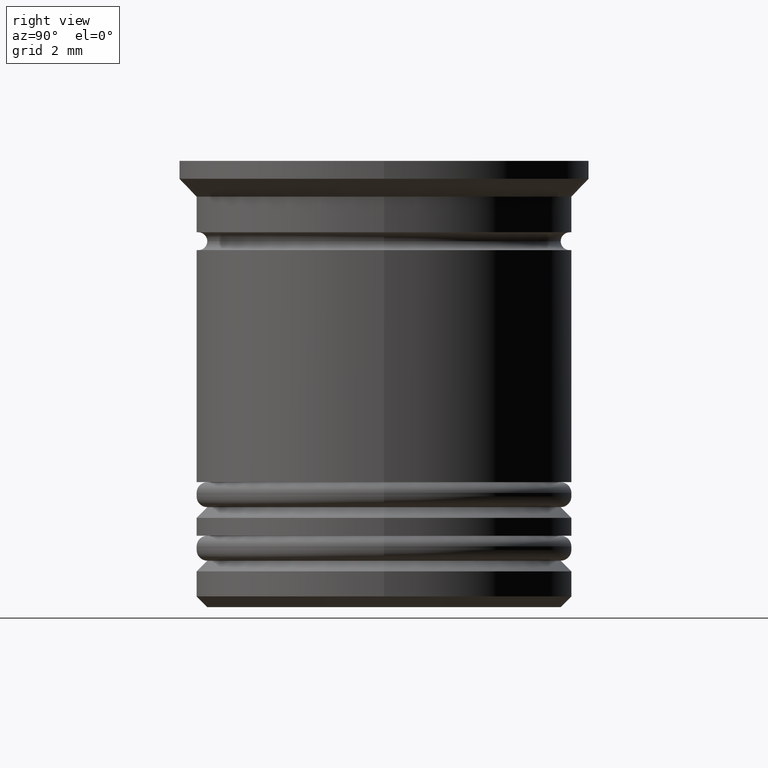
[diagram: clean part render]
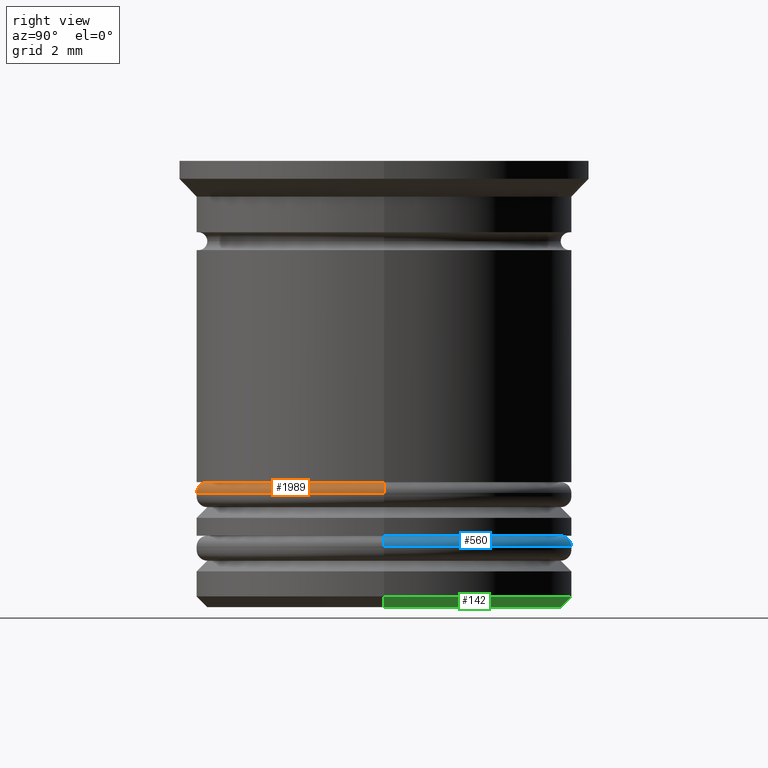
[diagram: same view with three faces highlighted in distinct colors, each labeled with its STEP entity id]
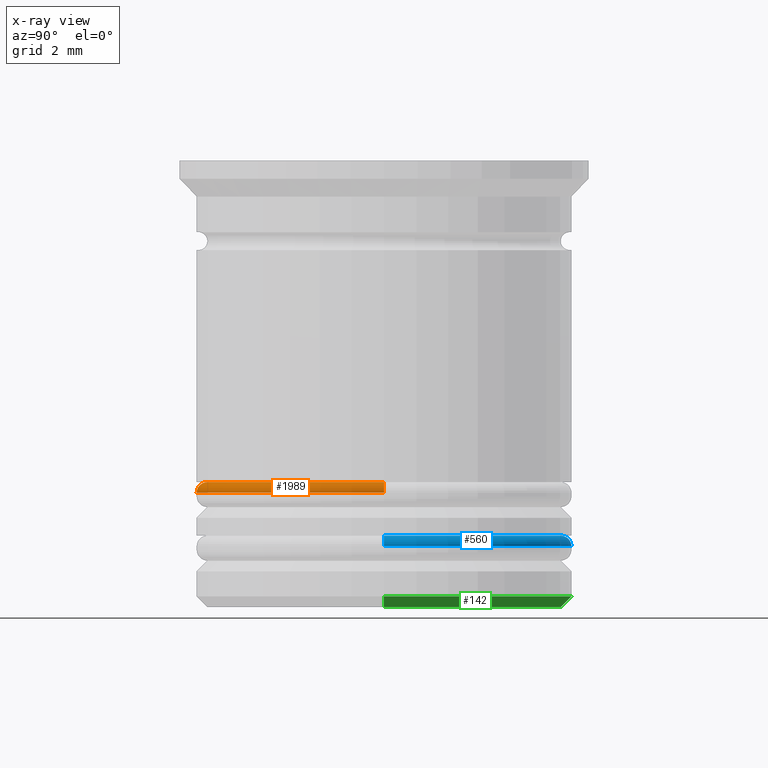
[diagram: x-ray of the same camera — body ghosted, the three highlighted faces saturated]
A machine part, right view with three faces highlighted in distinct colors.
The next image is the same camera in x-ray (body ghosted, the three faces saturated) — at least one of them is partly hidden behind the body in this view.
Their STEP definitions:

[orange] entity #1989 — the highlighted toroidal blend (fillet) surface has major radius 4.95 mm and minor (blend) radius 0.3 mm.
#28 = EDGE_LOOP ( 'NONE', ( #1746, #1790, #1097, #1050 ) ) ;
#110 = CARTESIAN_POINT ( 'NONE',  ( -4.950000000000000178, 0.000000000000000000, -9.000000000000001776 ) ) ;
#125 = CIRCLE ( 'NONE', #677, 0.2999999999999999334 ) ;
#146 = AXIS2_PLACEMENT_3D ( 'NONE', #533, #1941, #1140 ) ;
#180 = CIRCLE ( 'NONE', #1304, 4.950000000000000178 ) ;
#211 = CIRCLE ( 'NONE', #146, 5.250000000000000000 ) ;
#226 = DIRECTION ( 'NONE',  ( -0.000000000000000000, -1.000000000000000000, -0.000000000000000000 ) ) ;
#354 = CARTESIAN_POINT ( 'NONE',  ( 0.000000000000000000, 0.000000000000000000, -9.300000000000000711 ) ) ;
#420 = AXIS2_PLACEMENT_3D ( 'NONE', #354, #494, #1108 ) ;
#431 = EDGE_CURVE ( 'NONE', #1107, #1583, #792, .T. ) ;
#449 = CARTESIAN_POINT ( 'NONE',  ( 0.000000000000000000, 0.000000000000000000, -9.000000000000001776 ) ) ;
#458 = DIRECTION ( 'NONE',  ( -1.000000000000000000, 0.000000000000000000, 0.000000000000000000 ) ) ;
#478 = EDGE_CURVE ( 'NONE', #1307, #1583, #211, .T. ) ;
#494 = DIRECTION ( 'NONE',  ( 0.000000000000000000, 0.000000000000000000, -1.000000000000000000 ) ) ;
#533 = CARTESIAN_POINT ( 'NONE',  ( 0.000000000000000000, 0.000000000000000000, -9.300000000000000711 ) ) ;
#659 = CARTESIAN_POINT ( 'NONE',  ( -5.250000000000000000, 6.429395695523603167E-16, -9.300000000000000711 ) ) ;
#677 = AXIS2_PLACEMENT_3D ( 'NONE', #1627, #1164, #874 ) ;
#688 = CARTESIAN_POINT ( 'NONE',  ( 5.250000000000000000, 0.000000000000000000, -9.300000000000000711 ) ) ;
#792 = CIRCLE ( 'NONE', #927, 0.2999999999999999334 ) ;
#837 = CARTESIAN_POINT ( 'NONE',  ( -4.950000000000000178, 0.000000000000000000, -9.300000000000000711 ) ) ;
#874 = DIRECTION ( 'NONE',  ( -1.000000000000000000, -1.224646799147353207E-16, 0.000000000000000000 ) ) ;
#927 = AXIS2_PLACEMENT_3D ( 'NONE', #837, #226, #1293 ) ;
#1050 = ORIENTED_EDGE ( 'NONE', *, *, #478, .F. ) ;
#1097 = ORIENTED_EDGE ( 'NONE', *, *, #431, .T. ) ;
#1107 = VERTEX_POINT ( 'NONE', #110 ) ;
#1108 = DIRECTION ( 'NONE',  ( -1.000000000000000000, 0.000000000000000000, 0.000000000000000000 ) ) ;
#1140 = DIRECTION ( 'NONE',  ( -1.000000000000000000, 0.000000000000000000, 0.000000000000000000 ) ) ;
#1146 = EDGE_CURVE ( 'NONE', #1107, #1965, #180, .T. ) ;
#1164 = DIRECTION ( 'NONE',  ( -1.224646799147353207E-16, 1.000000000000000000, 0.000000000000000000 ) ) ;
#1207 = CARTESIAN_POINT ( 'NONE',  ( 4.950000000000000178, 6.245698675651501825E-16, -9.000000000000001776 ) ) ;
#1257 = FACE_OUTER_BOUND ( 'NONE', #28, .T. ) ;
#1276 = TOROIDAL_SURFACE ( 'NONE', #420, 4.950000000000000178, 0.2999999999999999889 ) ;
#1293 = DIRECTION ( 'NONE',  ( 0.000000000000000000, 0.000000000000000000, -1.000000000000000000 ) ) ;
#1304 = AXIS2_PLACEMENT_3D ( 'NONE', #449, #1845, #458 ) ;
#1307 = VERTEX_POINT ( 'NONE', #688 ) ;
#1583 = VERTEX_POINT ( 'NONE', #659 ) ;
#1627 = CARTESIAN_POINT ( 'NONE',  ( 4.950000000000000178, 6.062001655779398511E-16, -9.300000000000000711 ) ) ;
#1746 = ORIENTED_EDGE ( 'NONE', *, *, #1890, .F. ) ;
#1790 = ORIENTED_EDGE ( 'NONE', *, *, #1146, .F. ) ;
#1845 = DIRECTION ( 'NONE',  ( -0.000000000000000000, -0.000000000000000000, 1.000000000000000000 ) ) ;
#1890 = EDGE_CURVE ( 'NONE', #1965, #1307, #125, .T. ) ;
#1941 = DIRECTION ( 'NONE',  ( 0.000000000000000000, 0.000000000000000000, -1.000000000000000000 ) ) ;
#1965 = VERTEX_POINT ( 'NONE', #1207 ) ;
#1989 = ADVANCED_FACE ( 'NONE', ( #1257 ), #1276, .T. ) ;

[blue] entity #560 — the highlighted toroidal blend (fillet) surface has major radius 4.95 mm and minor (blend) radius 0.3 mm.
#40 = CARTESIAN_POINT ( 'NONE',  ( 0.000000000000000000, 0.000000000000000000, -10.50000000000000000 ) ) ;
#87 = CIRCLE ( 'NONE', #1180, 0.2999999999999999334 ) ;
#103 = DIRECTION ( 'NONE',  ( -0.000000000000000000, -1.000000000000000000, -0.000000000000000000 ) ) ;
#275 = VERTEX_POINT ( 'NONE', #962 ) ;
#283 = CIRCLE ( 'NONE', #1791, 5.250000000000000888 ) ;
#340 = AXIS2_PLACEMENT_3D ( 'NONE', #481, #1562, #1846 ) ;
#394 = ORIENTED_EDGE ( 'NONE', *, *, #1118, .T. ) ;
#405 = DIRECTION ( 'NONE',  ( -1.000000000000000000, -1.224646799147353207E-16, 0.000000000000000000 ) ) ;
#434 = CARTESIAN_POINT ( 'NONE',  ( 0.000000000000000000, 0.000000000000000000, -10.80000000000000071 ) ) ;
#445 = TOROIDAL_SURFACE ( 'NONE', #340, 4.950000000000001066, 0.2999999999999999889 ) ;
#481 = CARTESIAN_POINT ( 'NONE',  ( 0.000000000000000000, 0.000000000000000000, -10.80000000000000071 ) ) ;
#559 = ORIENTED_EDGE ( 'NONE', *, *, #1831, .F. ) ;
#560 = ADVANCED_FACE ( 'NONE', ( #971 ), #445, .T. ) ;
#768 = CIRCLE ( 'NONE', #902, 0.2999999999999999334 ) ;
#800 = CIRCLE ( 'NONE', #1027, 4.950000000000001066 ) ;
#834 = DIRECTION ( 'NONE',  ( -1.000000000000000000, 0.000000000000000000, 0.000000000000000000 ) ) ;
#857 = CARTESIAN_POINT ( 'NONE',  ( -4.950000000000001066, 0.000000000000000000, -10.80000000000000071 ) ) ;
#902 = AXIS2_PLACEMENT_3D ( 'NONE', #857, #103, #1469 ) ;
#962 = CARTESIAN_POINT ( 'NONE',  ( 4.950000000000001066, 6.245698675651502811E-16, -10.50000000000000000 ) ) ;
#971 = FACE_OUTER_BOUND ( 'NONE', #1450, .T. ) ;
#976 = EDGE_CURVE ( 'NONE', #1406, #1055, #768, .T. ) ;
#994 = DIRECTION ( 'NONE',  ( -0.000000000000000000, -0.000000000000000000, 1.000000000000000000 ) ) ;
#1027 = AXIS2_PLACEMENT_3D ( 'NONE', #40, #994, #834 ) ;
#1055 = VERTEX_POINT ( 'NONE', #1176 ) ;
#1118 = EDGE_CURVE ( 'NONE', #275, #1563, #87, .T. ) ;
#1176 = CARTESIAN_POINT ( 'NONE',  ( -5.250000000000000888, 6.429395695523604153E-16, -10.80000000000000071 ) ) ;
#1180 = AXIS2_PLACEMENT_3D ( 'NONE', #1952, #1599, #405 ) ;
#1254 = CARTESIAN_POINT ( 'NONE',  ( 5.250000000000000888, 0.000000000000000000, -10.80000000000000071 ) ) ;
#1377 = ORIENTED_EDGE ( 'NONE', *, *, #976, .F. ) ;
#1406 = VERTEX_POINT ( 'NONE', #1879 ) ;
#1426 = ORIENTED_EDGE ( 'NONE', *, *, #1555, .F. ) ;
#1450 = EDGE_LOOP ( 'NONE', ( #1426, #394, #559, #1377 ) ) ;
#1469 = DIRECTION ( 'NONE',  ( 0.000000000000000000, 0.000000000000000000, -1.000000000000000000 ) ) ;
#1555 = EDGE_CURVE ( 'NONE', #275, #1406, #800, .T. ) ;
#1562 = DIRECTION ( 'NONE',  ( 0.000000000000000000, 0.000000000000000000, -1.000000000000000000 ) ) ;
#1563 = VERTEX_POINT ( 'NONE', #1254 ) ;
#1599 = DIRECTION ( 'NONE',  ( -1.224646799147353207E-16, 1.000000000000000000, 0.000000000000000000 ) ) ;
#1783 = DIRECTION ( 'NONE',  ( -1.000000000000000000, 0.000000000000000000, 0.000000000000000000 ) ) ;
#1791 = AXIS2_PLACEMENT_3D ( 'NONE', #434, #1962, #1783 ) ;
#1831 = EDGE_CURVE ( 'NONE', #1055, #1563, #283, .T. ) ;
#1846 = DIRECTION ( 'NONE',  ( -1.000000000000000000, 0.000000000000000000, 0.000000000000000000 ) ) ;
#1879 = CARTESIAN_POINT ( 'NONE',  ( -4.950000000000001066, 0.000000000000000000, -10.50000000000000000 ) ) ;
#1952 = CARTESIAN_POINT ( 'NONE',  ( 4.950000000000001066, 6.062001655779399497E-16, -10.80000000000000071 ) ) ;
#1962 = DIRECTION ( 'NONE',  ( 0.000000000000000000, 0.000000000000000000, -1.000000000000000000 ) ) ;

[green] entity #142 — the highlighted conical surface has half-angle 45 deg.
#46 = VERTEX_POINT ( 'NONE', #1708 ) ;
#50 = AXIS2_PLACEMENT_3D ( 'NONE', #1874, #646, #1253 ) ;
#90 = CARTESIAN_POINT ( 'NONE',  ( 5.250000000000000888, 0.000000000000000000, -12.19999999999999751 ) ) ;
#142 = ADVANCED_FACE ( 'NONE', ( #1593 ), #379, .T. ) ;
#169 = CARTESIAN_POINT ( 'NONE',  ( -5.250000000000000888, 6.429395695523605139E-16, -12.19999999999999751 ) ) ;
#310 = ORIENTED_EDGE ( 'NONE', *, *, #1927, .T. ) ;
#379 = CONICAL_SURFACE ( 'NONE', #1495, 5.250000000000000888, 0.7853981633974511656 ) ;
#473 = VECTOR ( 'NONE', #1931, 1000.000000000000000 ) ;
#506 = ORIENTED_EDGE ( 'NONE', *, *, #547, .F. ) ;
#536 = DIRECTION ( 'NONE',  ( 1.000000000000000000, 0.000000000000000000, 0.000000000000000000 ) ) ;
#547 = EDGE_CURVE ( 'NONE', #1033, #46, #1359, .T. ) ;
#646 = DIRECTION ( 'NONE',  ( 0.000000000000000000, 0.000000000000000000, -1.000000000000000000 ) ) ;
#776 = EDGE_CURVE ( 'NONE', #1778, #1512, #1649, .T. ) ;
#903 = DIRECTION ( 'NONE',  ( -0.000000000000000000, -0.000000000000000000, 1.000000000000000000 ) ) ;
#922 = LINE ( 'NONE', #1990, #1000 ) ;
#941 = EDGE_LOOP ( 'NONE', ( #506, #310, #1900, #1709 ) ) ;
#1000 = VECTOR ( 'NONE', #1222, 1000.000000000000000 ) ;
#1033 = VERTEX_POINT ( 'NONE', #1485 ) ;
#1092 = EDGE_CURVE ( 'NONE', #46, #1778, #1482, .T. ) ;
#1222 = DIRECTION ( 'NONE',  ( -0.7071067811865495711, 8.659560562354957510E-17, 0.7071067811865454633 ) ) ;
#1237 = CARTESIAN_POINT ( 'NONE',  ( 0.000000000000000000, 0.000000000000000000, -12.19999999999999751 ) ) ;
#1253 = DIRECTION ( 'NONE',  ( -1.000000000000000000, 0.000000000000000000, 0.000000000000000000 ) ) ;
#1359 = CIRCLE ( 'NONE', #50, 4.949999999999995737 ) ;
#1429 = AXIS2_PLACEMENT_3D ( 'NONE', #1237, #903, #1968 ) ;
#1482 = LINE ( 'NONE', #90, #473 ) ;
#1485 = CARTESIAN_POINT ( 'NONE',  ( -4.949999999999995737, 6.245698675651499853E-16, -12.50000000000000000 ) ) ;
#1495 = AXIS2_PLACEMENT_3D ( 'NONE', #1763, #1912, #536 ) ;
#1512 = VERTEX_POINT ( 'NONE', #169 ) ;
#1561 = CARTESIAN_POINT ( 'NONE',  ( 5.250000000000000888, 0.000000000000000000, -12.19999999999999751 ) ) ;
#1593 = FACE_OUTER_BOUND ( 'NONE', #941, .T. ) ;
#1649 = CIRCLE ( 'NONE', #1429, 5.250000000000000888 ) ;
#1708 = CARTESIAN_POINT ( 'NONE',  ( 4.949999999999995737, 0.000000000000000000, -12.50000000000000000 ) ) ;
#1709 = ORIENTED_EDGE ( 'NONE', *, *, #1092, .F. ) ;
#1763 = CARTESIAN_POINT ( 'NONE',  ( 0.000000000000000000, 0.000000000000000000, -12.19999999999999751 ) ) ;
#1778 = VERTEX_POINT ( 'NONE', #1561 ) ;
#1874 = CARTESIAN_POINT ( 'NONE',  ( 0.000000000000000000, 0.000000000000000000, -12.50000000000000000 ) ) ;
#1900 = ORIENTED_EDGE ( 'NONE', *, *, #776, .F. ) ;
#1912 = DIRECTION ( 'NONE',  ( -0.000000000000000000, -0.000000000000000000, 1.000000000000000000 ) ) ;
#1927 = EDGE_CURVE ( 'NONE', #1033, #1512, #922, .T. ) ;
#1931 = DIRECTION ( 'NONE',  ( 0.7071067811865495711, 0.000000000000000000, 0.7071067811865454633 ) ) ;
#1968 = DIRECTION ( 'NONE',  ( -1.000000000000000000, 0.000000000000000000, 0.000000000000000000 ) ) ;
#1990 = CARTESIAN_POINT ( 'NONE',  ( -5.250000000000000888, 6.429395695523605139E-16, -12.19999999999999751 ) ) ;